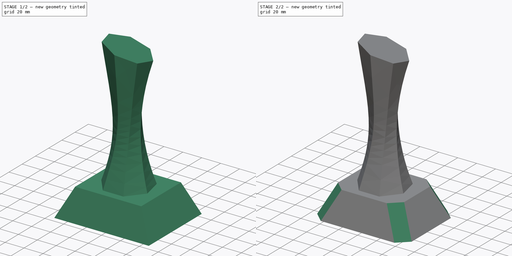
[diagram: build sequence overview — one tinted view per stage of 2, left to right]
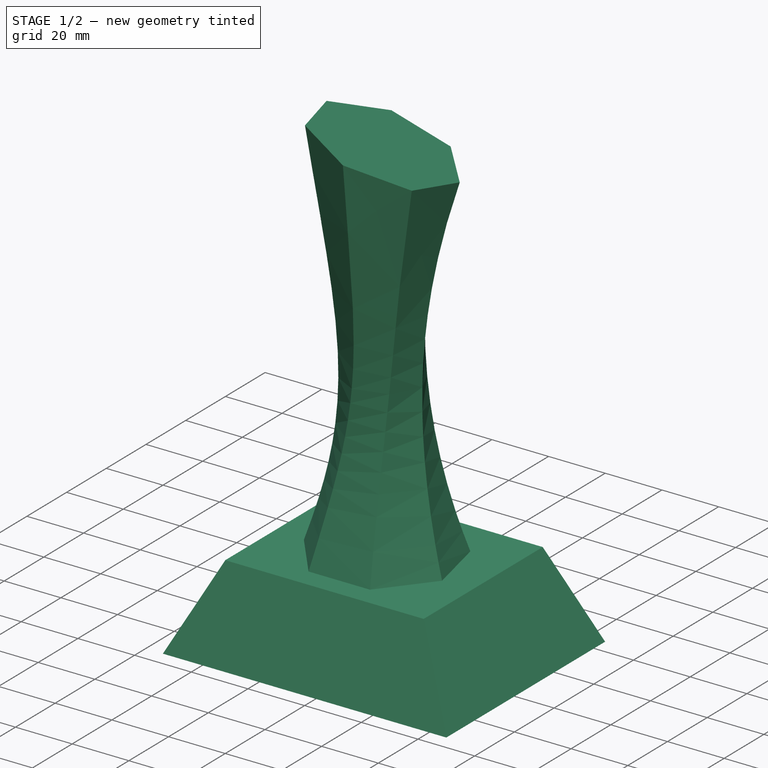
[diagram: stage 1 of 2 — iso view after this stage's code; geometry added in this stage tinted green]
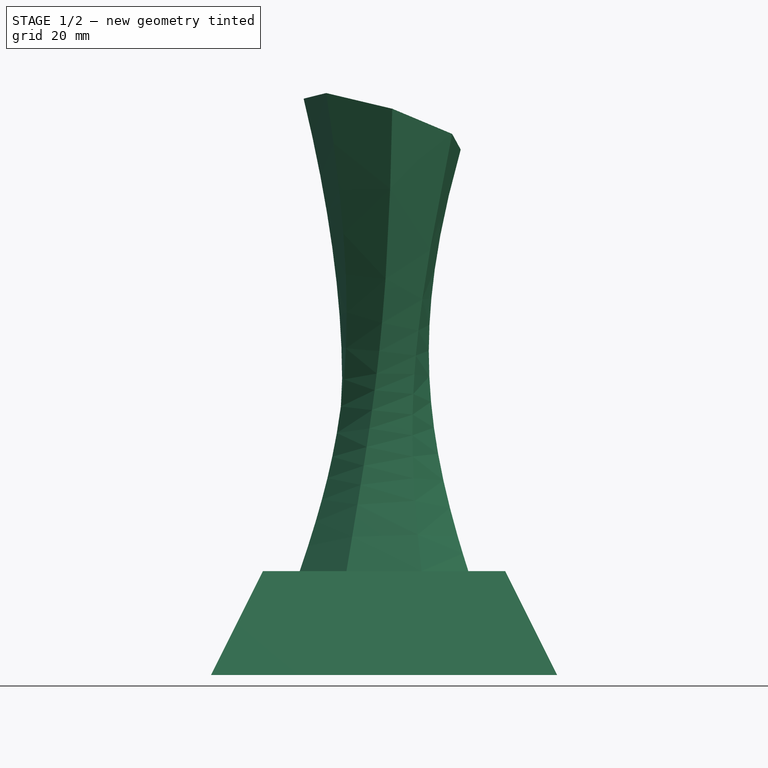
[diagram: stage 1 of 2 — front view after this stage's code; geometry added in this stage tinted green]
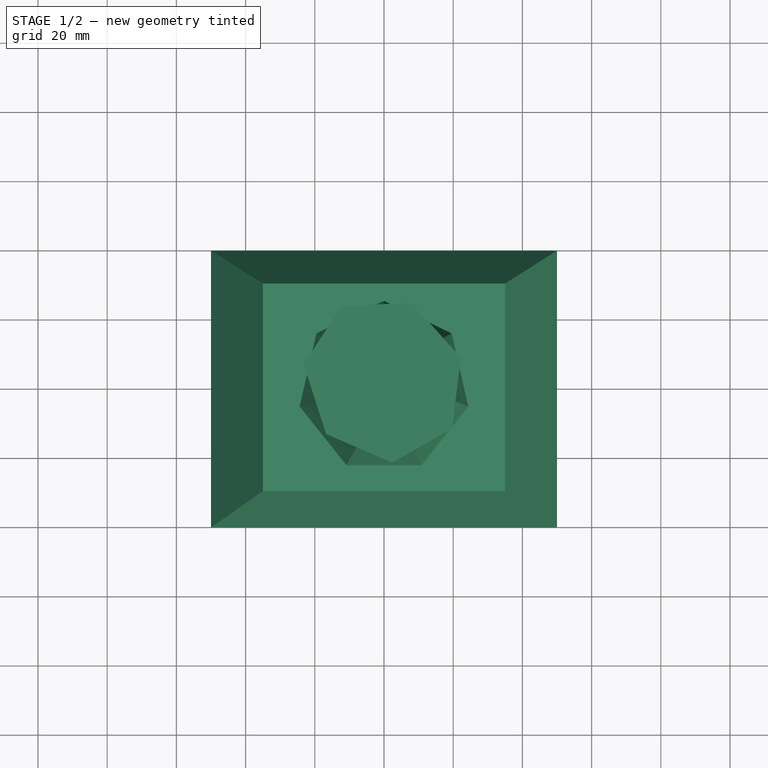
[diagram: stage 1 of 2 — top view after this stage's code; geometry added in this stage tinted green]
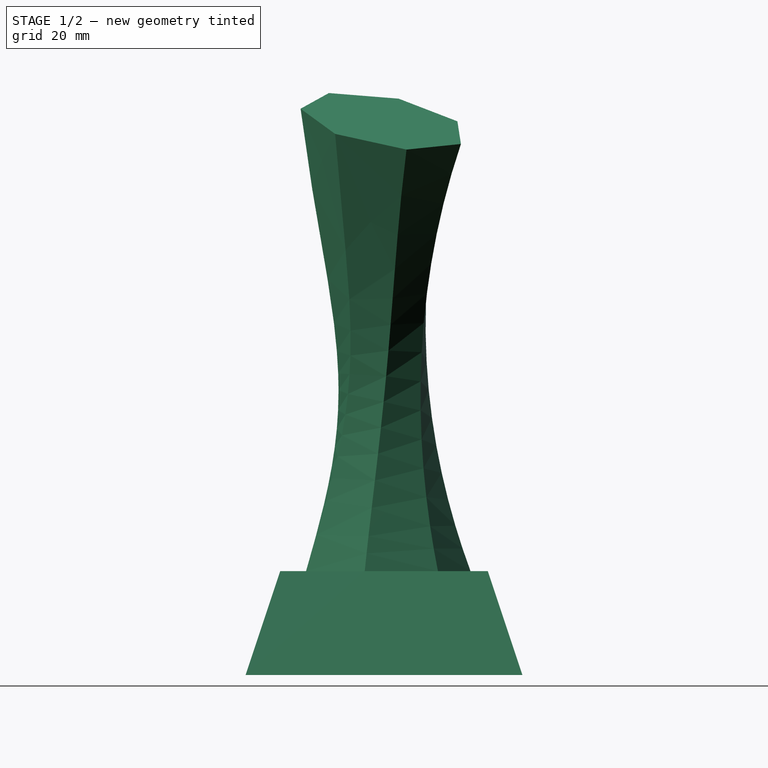
[diagram: stage 1 of 2 — right view after this stage's code; geometry added in this stage tinted green]
FCSTD DOCUMENT  (FreeCAD 0.20R29603 (Git))
Label: P010
License: All rights reserved
LicenseURL: http://en.wikipedia.org/wiki/All_rights_reserved
objects: Sketcher::SketchObject×6, PartDesign::AdditiveLoft×1, PartDesign::Line×1, PartDesign::Plane×1, PartDesign::AdditivePipe×1, PartDesign::Chamfer×1, PartDesign::Body×1
note: 15 computed .brp shape members not serialized (recipe doc carries the construction recipe); baked Part::Feature solids carry a one-line shape summary decoded from their .brp

FEATURE [Sketcher::SketchObject] Sketch
  FullyConstrained = true
  MapMode = 5
  Support = -> [XY_Plane]
  sketch-geometry (4):
    g0: LineSegment StartX=-50 StartY=40 StartZ=0 EndX=50 EndY=40 EndZ=0
    g1: LineSegment StartX=50 StartY=40 StartZ=0 EndX=50 EndY=-40 EndZ=0
    g2: LineSegment StartX=50 StartY=-40 StartZ=0 EndX=-50 EndY=-40 EndZ=0
    g3: LineSegment StartX=-50 StartY=-40 StartZ=0 EndX=-50 EndY=40 EndZ=0
  constraints (11):
    c: Coincident(g0,g1)
    c: Coincident(g1,g2)
    c: Coincident(g2,g3)
    c: Coincident(g3,g0)
    c: Horizontal(g0)
    c: Horizontal(g2)
    c: Vertical(g1)
    c: Vertical(g3)
    c: Symmetric(g0,g1,g-1)
    c: DistanceX(g0,g0) = 100
    c: DistanceY(g1,g1) = 80
FEATURE [Sketcher::SketchObject] Sketch001
  AttachmentOffset = pos=(0,0,30) rot=(0,0,1;0rad)
  FullyConstrained = true
  MapMode = 5
  Placement = pos=(0,0,30) rot=(0,0,1;0rad)
  Support = -> [XY_Plane]
  sketch-geometry (4):
    g0: LineSegment StartX=-35 StartY=30 StartZ=0 EndX=35 EndY=30 EndZ=0
    g1: LineSegment StartX=35 StartY=30 StartZ=0 EndX=35 EndY=-30 EndZ=0
    g2: LineSegment StartX=35 StartY=-30 StartZ=0 EndX=-35 EndY=-30 EndZ=0
    g3: LineSegment StartX=-35 StartY=-30 StartZ=0 EndX=-35 EndY=30 EndZ=0
  constraints (11):
    c: Coincident(g0,g1)
    c: Coincident(g1,g2)
    c: Coincident(g2,g3)
    c: Coincident(g3,g0)
    c: Horizontal(g0)
    c: Horizontal(g2)
    c: Vertical(g1)
    c: Vertical(g3)
    c: Symmetric(g0,g1,g-1)
    c: DistanceX(g0,g0) = 70
    c: DistanceY(g3,g3) = 60
FEATURE [PartDesign::AdditiveLoft] AdditiveLoft
  Closed = false
  Profile = -> Sketch
  Refine = true
  Ruled = false
  Sections = -> [Sketch001]
FEATURE [Sketcher::SketchObject] Sketch002
  FullyConstrained = true
  MapMode = 5
  Placement = pos=(0,0,30) rot=(0,0,1;0rad)
  Support = -> [AdditiveLoft]
  sketch-geometry (8):
    g0: LineSegment StartX=0 StartY=25 StartZ=0 EndX=-19.5458 EndY=15.5872 EndZ=0
    g1: LineSegment StartX=-19.5458 StartY=15.5872 StartZ=0 EndX=-24.3732 EndY=-5.56302 EndZ=0
    g2: LineSegment StartX=-24.3732 StartY=-5.56302 StartZ=0 EndX=-10.8471 EndY=-22.5242 EndZ=0
    g3: LineSegment StartX=-10.8471 StartY=-22.5242 StartZ=0 EndX=10.8471 EndY=-22.5242 EndZ=0
    g4: LineSegment StartX=10.8471 StartY=-22.5242 StartZ=0 EndX=24.3732 EndY=-5.56302 EndZ=0
    g5: LineSegment StartX=24.3732 StartY=-5.56302 StartZ=0 EndX=19.5458 EndY=15.5872 EndZ=0
    g6: LineSegment StartX=19.5458 StartY=15.5872 StartZ=0 EndX=0 EndY=25 EndZ=0
    g7: Circle CenterX=0 CenterY=0 CenterZ=0 NormalX=0 NormalY=0 NormalZ=1 AngleXU=0 Radius=25
  constraints (18):
    c: Coincident(g0,g1)
    c: Coincident(g1,g2)
    c: Coincident(g2,g3)
    c: Coincident(g3,g4)
    c: Coincident(g4,g5)
    c: Coincident(g5,g6)
    c: Coincident(g6,g0)
    c: Equal(g0, g1-g6) x6
    c: PointOnObject(g0,g7)
    c: PointOnObject(g1,g7)
    c: PointOnObject(g2,g7)
    c: PointOnObject(g3,g7)
    c: PointOnObject(g4,g7)
    c: PointOnObject(g5,g7)
    c: PointOnObject(g6,g7)
    c: Coincident(g7,g-1)
    c: PointOnObject(g6,g-2)
    c: Diameter(g7) = 50
FEATURE [Sketcher::SketchObject] Sketch003
  AttachmentOffset = pos=(0,0,80) rot=(0,0,1;0rad)
  FullyConstrained = true
  MapMode = 5
  Placement = pos=(0,0,80) rot=(0,0,1;0rad)
  Support = -> [XY_Plane]
  sketch-geometry (8):
    g0: LineSegment StartX=13.5 StartY=0 StartZ=0 EndX=8.41711 EndY=10.5547 EndZ=0
    g1: LineSegment StartX=8.41711 StartY=10.5547 StartZ=0 EndX=-3.00403 EndY=13.1615 EndZ=0
    g2: LineSegment StartX=-3.00403 StartY=13.1615 StartZ=0 EndX=-12.1631 EndY=5.85743 EndZ=0
    g3: LineSegment StartX=-12.1631 StartY=5.85743 StartZ=0 EndX=-12.1631 EndY=-5.85743 EndZ=0
    g4: LineSegment StartX=-12.1631 StartY=-5.85743 StartZ=0 EndX=-3.00403 EndY=-13.1615 EndZ=0
    g5: LineSegment StartX=-3.00403 StartY=-13.1615 StartZ=0 EndX=8.41711 EndY=-10.5547 EndZ=0
    g6: LineSegment StartX=8.41711 StartY=-10.5547 StartZ=0 EndX=13.5 EndY=0 EndZ=0
    g7: Circle CenterX=0 CenterY=0 CenterZ=0 NormalX=0 NormalY=0 NormalZ=1 AngleXU=0 Radius=13.5
  constraints (18):
    c: Coincident(g0,g1)
    c: Coincident(g1,g2)
    c: Coincident(g2,g3)
    c: Coincident(g3,g4)
    c: Coincident(g4,g5)
    c: Coincident(g5,g6)
    c: Coincident(g6,g0)
    c: Equal(g0, g1-g6) x6
    c: PointOnObject(g0,g7)
    c: PointOnObject(g1,g7)
    c: PointOnObject(g2,g7)
    c: PointOnObject(g3,g7)
    c: PointOnObject(g4,g7)
    c: PointOnObject(g5,g7)
    c: PointOnObject(g6,g7)
    c: Coincident(g7,g-1)
    c: PointOnObject(g6,g-1)
    c: Diameter(g7) = 27
FEATURE [PartDesign::Line] DatumLine
  AttacherType = Attacher::AttachEngineLine
  Length = 20
  MapMode = 18
  Placement = pos=(0,0,80) rot=(0,0,1;0rad)
  ResizeMode = 0
  Support = -> [Sketch003]
FEATURE [PartDesign::Plane] DatumPlane
  AttachmentOffset = pos=(0,0,80) rot=(-0.145723,0.543846,0.826436;0.627057rad)
  Length = 214.748
  MapMode = 2
  Placement = pos=(0,0,160) rot=(-0.145723,0.543846,0.826436;0.627057rad)
  ResizeMode = 0
  Support = -> [DatumLine]
  Width = 148.995
FEATURE [Sketcher::SketchObject] Sketch004
  FullyConstrained = true
  MapMode = 5
  Placement = pos=(0,-3.6e-15,160) rot=(-0.145723,0.543846,0.826436;0.627057rad)
  Support = -> [DatumPlane]
  sketch-geometry (8):
    g0: LineSegment StartX=0 StartY=24.5 StartZ=0 EndX=-19.1549 EndY=15.2755 EndZ=0
    g1: LineSegment StartX=-19.1549 StartY=15.2755 StartZ=0 EndX=-23.8857 EndY=-5.45176 EndZ=0
    g2: LineSegment StartX=-23.8857 StartY=-5.45176 StartZ=0 EndX=-10.6302 EndY=-22.0737 EndZ=0
    g3: LineSegment StartX=-10.6302 StartY=-22.0737 StartZ=0 EndX=10.6302 EndY=-22.0737 EndZ=0
    g4: LineSegment StartX=10.6302 StartY=-22.0737 StartZ=0 EndX=23.8857 EndY=-5.45176 EndZ=0
    g5: LineSegment StartX=23.8857 StartY=-5.45176 StartZ=0 EndX=19.1549 EndY=15.2755 EndZ=0
    g6: LineSegment StartX=19.1549 StartY=15.2755 StartZ=0 EndX=0 EndY=24.5 EndZ=0
    g7: Circle CenterX=0 CenterY=0 CenterZ=0 NormalX=0 NormalY=0 NormalZ=1 AngleXU=0 Radius=24.5
  constraints (18):
    c: Coincident(g0,g1)
    c: Coincident(g1,g2)
    c: Coincident(g2,g3)
    c: Coincident(g3,g4)
    c: Coincident(g4,g5)
    c: Coincident(g5,g6)
    c: Coincident(g6,g0)
    c: Equal(g0, g1-g6) x6
    c: PointOnObject(g0,g7)
    c: PointOnObject(g1,g7)
    c: PointOnObject(g2,g7)
    c: PointOnObject(g3,g7)
    c: PointOnObject(g4,g7)
    c: PointOnObject(g5,g7)
    c: PointOnObject(g6,g7)
    c: Coincident(g7,g-1)
    c: PointOnObject(g6,g-2)
    c: Diameter(g7) = 49
FEATURE [Sketcher::SketchObject] Sketch005
  ExternalGeometry = -> [Sketch002,Sketch003,Sketch004]
  FullyConstrained = true
  MapMode = 5
  Placement = pos=(0,0,0) rot=(0.57735,0.57735,0.57735;2.0944rad)
  Support = -> [YZ_Plane]
  sketch-geometry (1):
    g0: ArcOfCircle CenterX=155.11 CenterY=94.6761 CenterZ=0 NormalX=0 NormalY=0 NormalZ=1 AngleXU=0 Radius=145.298 StartAngle=2.72517 EndAngle=3.60291
  constraints (3):
    c: Coincident(g0,g-5)
    c: Coincident(g0,g-3)
    c: PointOnObject(g-4,g0)
FEATURE [PartDesign::AdditivePipe] AdditivePipe
  AuxilleryCurvelinear = true
  AuxillerySpineTangent = false
  BaseFeature = -> AdditiveLoft
  Binormal = (0,0,0)
  Mode = 0
  Profile = -> Sketch002
  Refine = true
  Sections = -> [Sketch003,Sketch004]
  Spine = -> Sketch005
  SpineTangent = false
  Transformation = 1
  Transition = 0
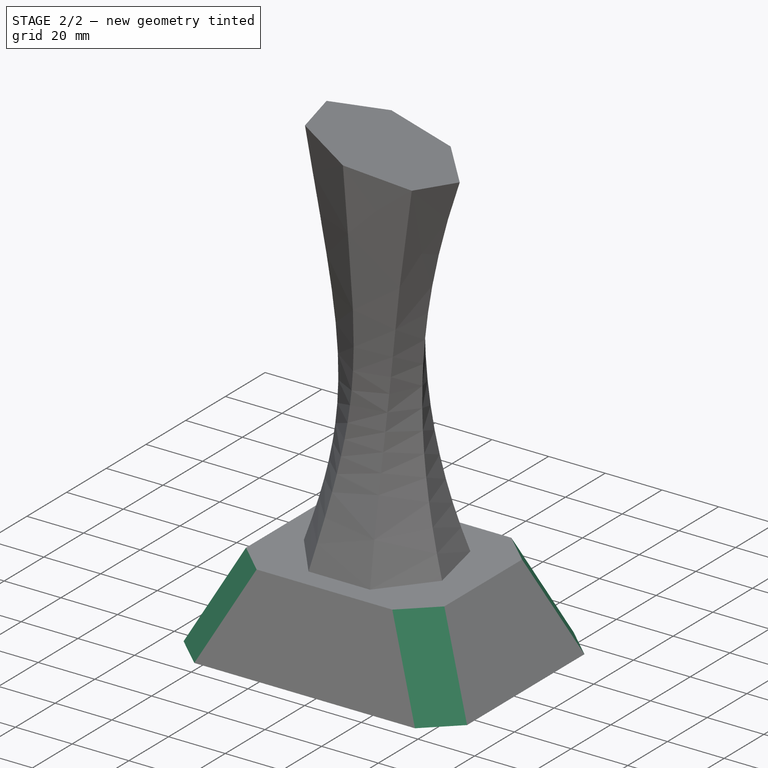
[diagram: stage 2 of 2 — iso view after this stage's code; geometry added in this stage tinted green]
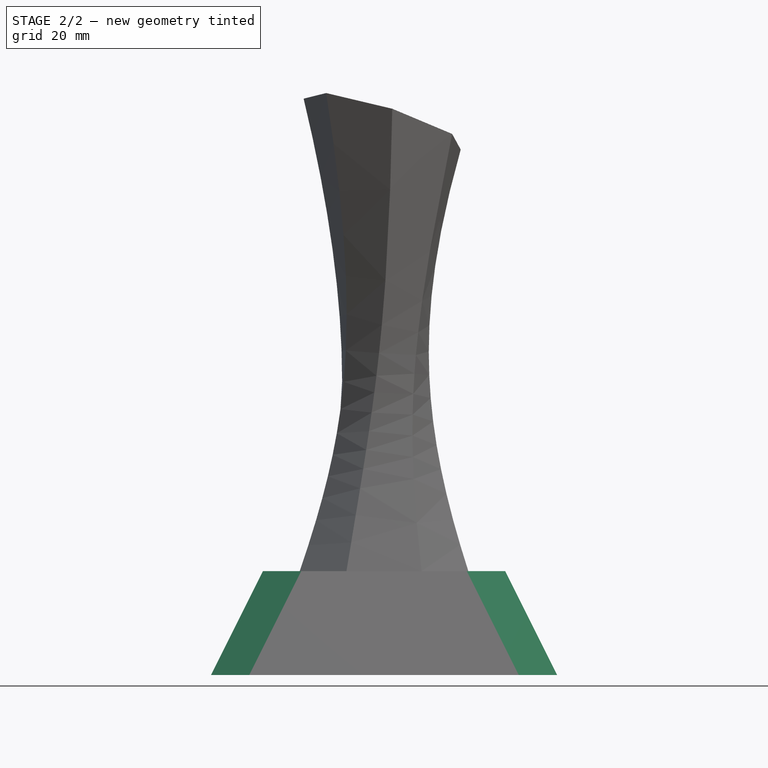
[diagram: stage 2 of 2 — front view after this stage's code; geometry added in this stage tinted green]
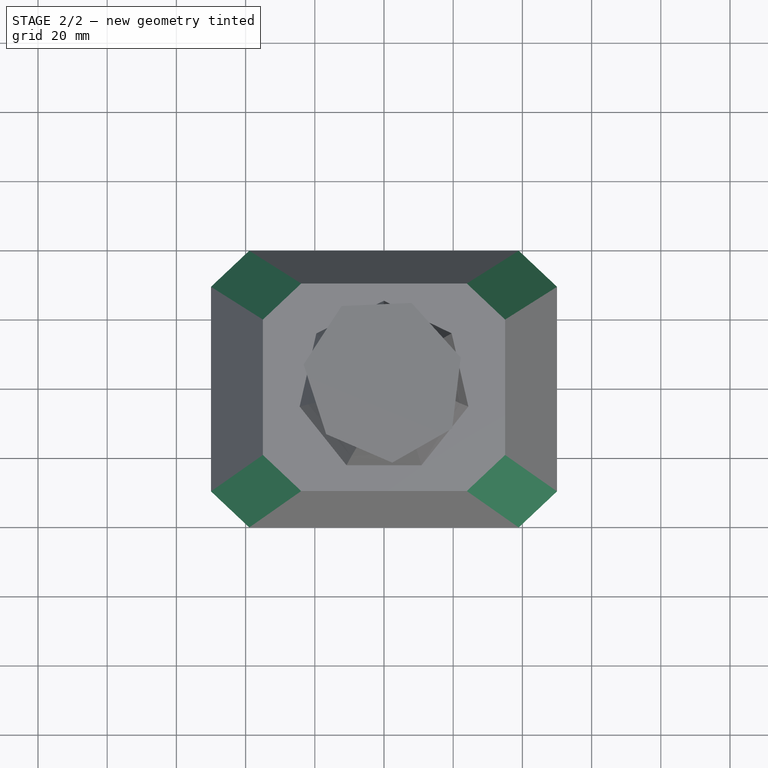
[diagram: stage 2 of 2 — top view after this stage's code; geometry added in this stage tinted green]
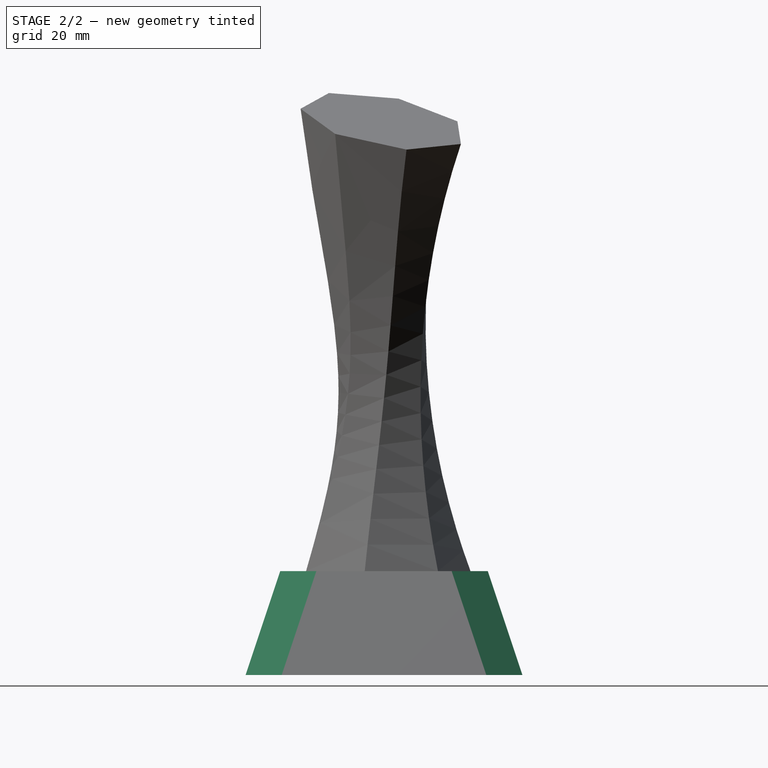
[diagram: stage 2 of 2 — right view after this stage's code; geometry added in this stage tinted green]
FEATURE [PartDesign::Chamfer] Chamfer
  Angle = 45
  Base = -> AdditivePipe [Edge10,Edge8,Edge7,Edge5]
  BaseFeature = -> AdditivePipe
  ChamferType = 0
  FlipDirection = false
  Refine = true
  Size = 10
  Size2 = 1
  SupportTransform = false
  UseAllEdges = false
FEATURE [PartDesign::Body] Body
  Group = -> [Sketch,Sketch001,AdditiveLoft,Sketch002,Sketch003,DatumLine,DatumPlane,Sketch004,Sketch005,AdditivePipe,Chamfer]
  Origin = -> Origin
  Tip = -> Chamfer
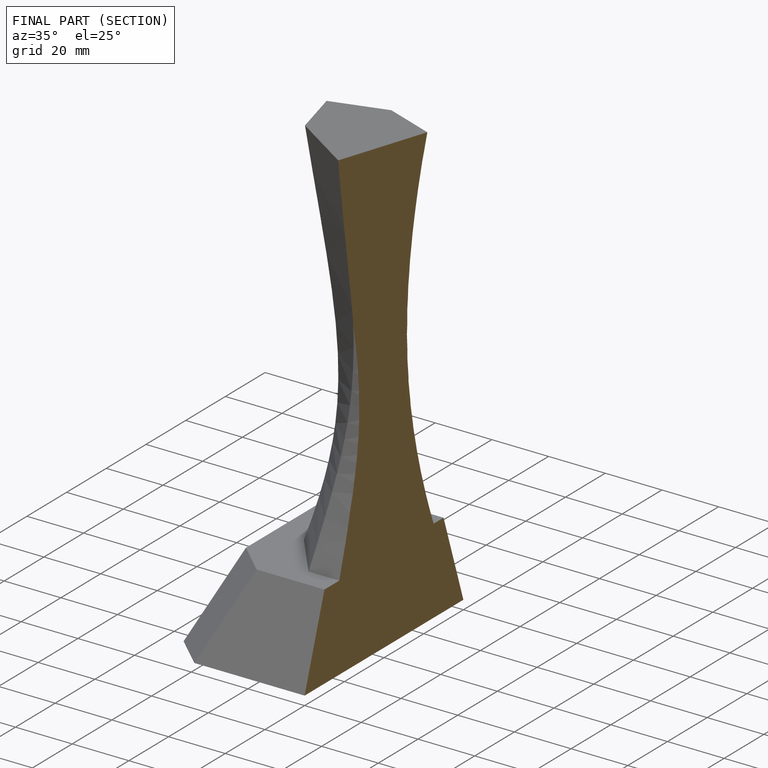
[diagram: finished part — half-section view (interior)]
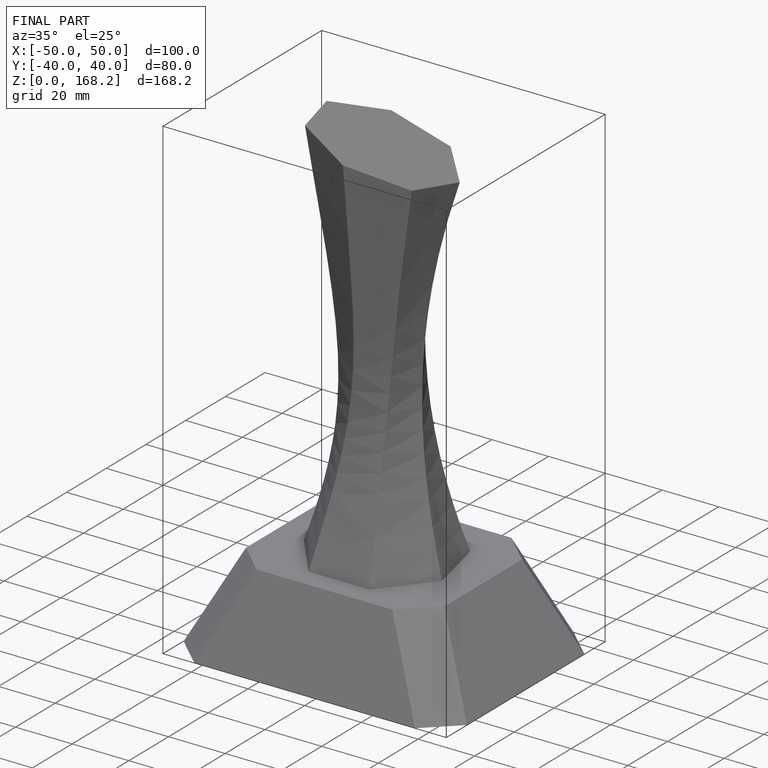
[diagram: finished part — iso view with bounding-box wireframe]
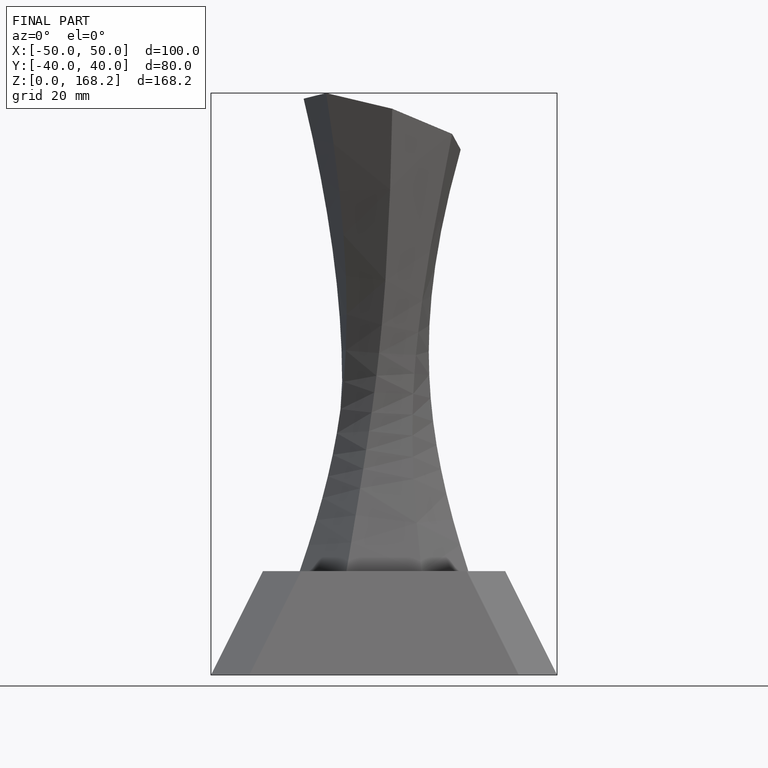
[diagram: finished part — front view with bounding-box wireframe]
